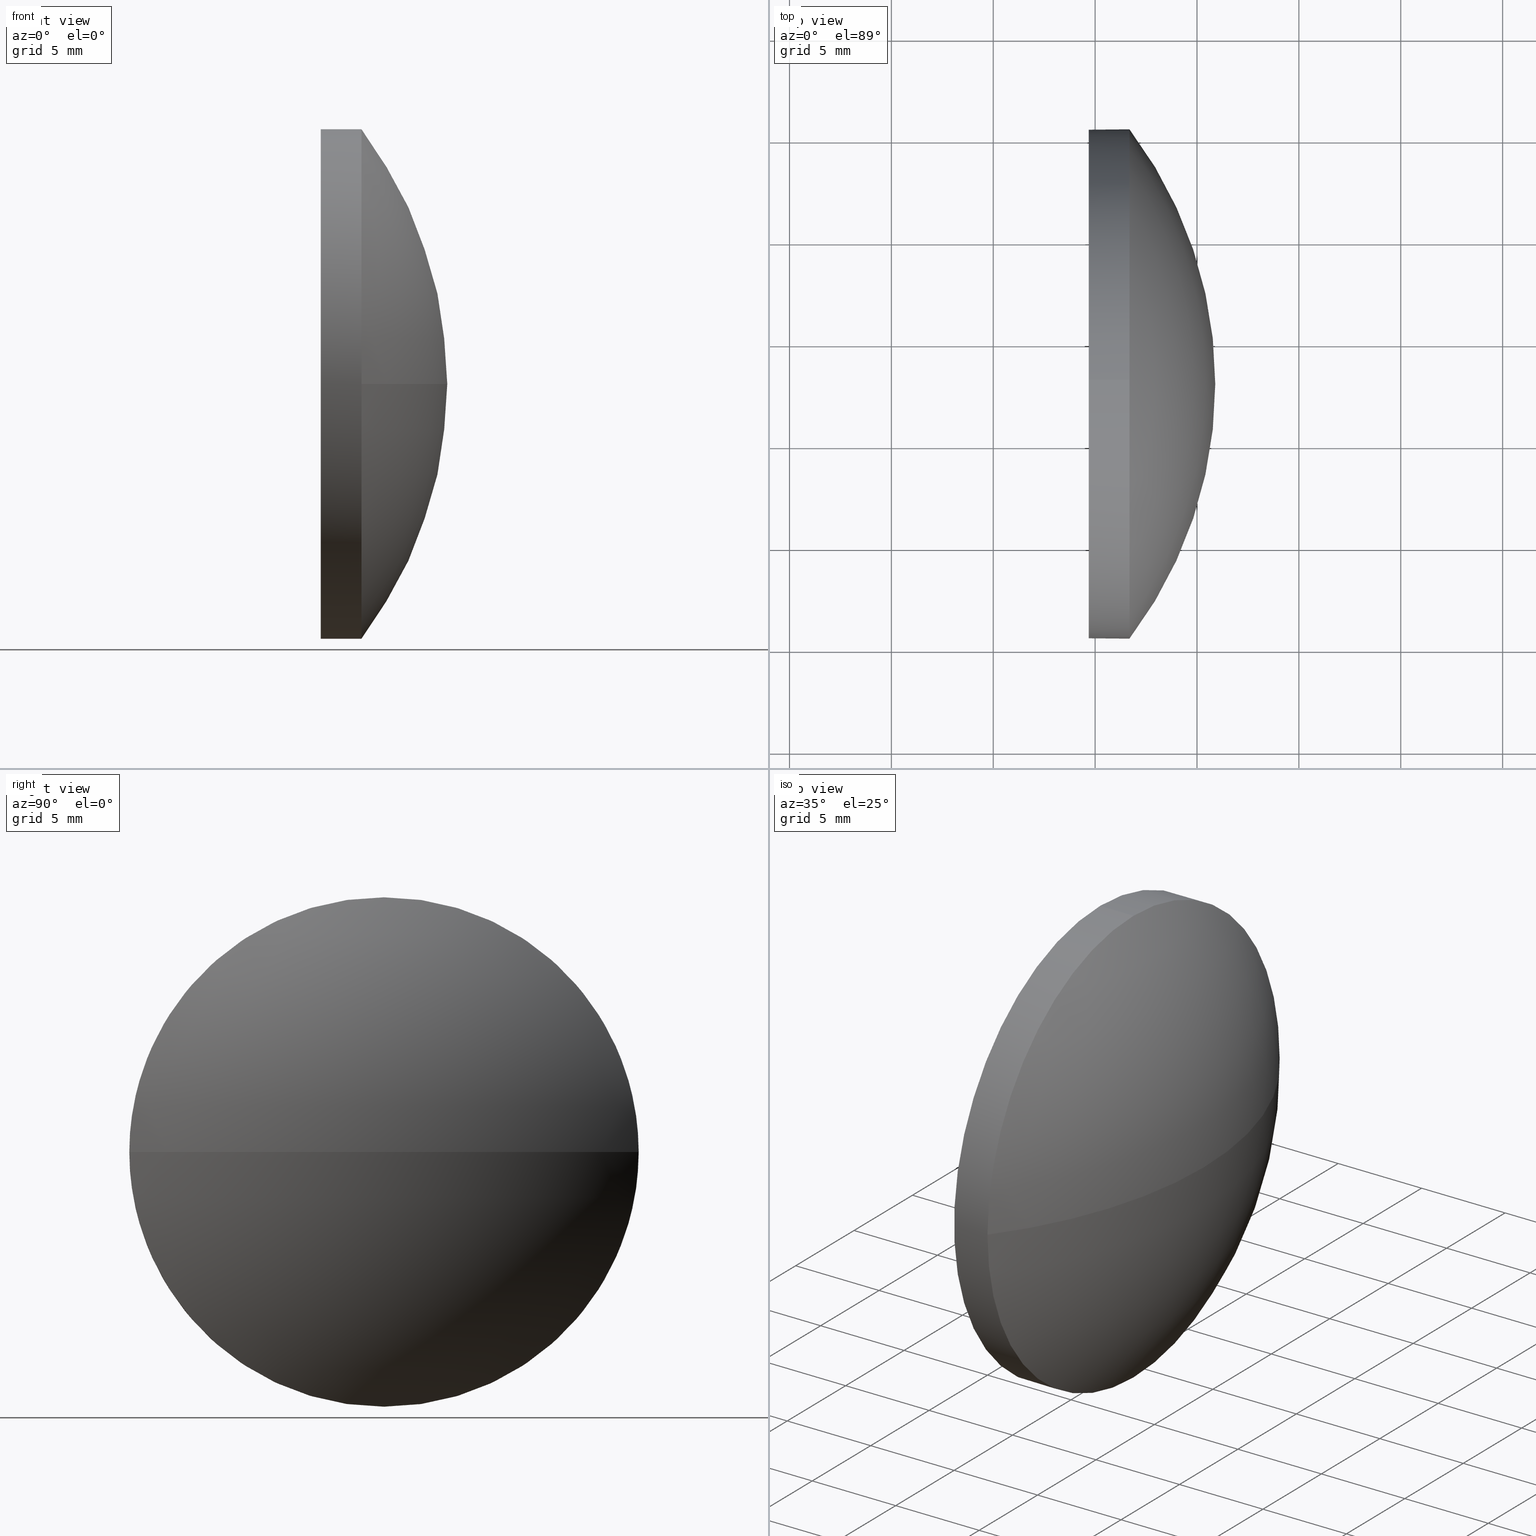
[diagram: canonical four-view strip — front | top / right | iso, engineering-drawing reading convention]
A machine part, canonical four-view strip (front | top / right | iso — engineering-drawing reading convention). The complete STEP part file that produces these views, byte-faithful:
ISO-10303-21;
HEADER;
FILE_DESCRIPTION (( 'STEP AP214' ),
    '1' );
FILE_NAME ('100211.STEP',
    '2019-05-23T07:29:26',
    ( '' ),
    ( '' ),
    'SwSTEP 2.0',
    'SolidWorks 2016',
    '' );
FILE_SCHEMA (( 'AUTOMOTIVE_DESIGN' ));
ENDSEC;

DATA;
#1 = CIRCLE ( 'NONE', #129, 12.49999999999999600 ) ;
#2 = ADVANCED_FACE ( 'NONE', ( #102 ), #83, .F. ) ;
#3 = CARTESIAN_POINT ( 'NONE',  ( 632.6574783470242700, 47.94655312557324600, 0.0000000000000000000 ) ) ;
#4 = DIRECTION ( 'NONE',  ( -1.000000000000000000, -0.0000000000000000000, -0.0000000000000000000 ) ) ;
#5 =( LENGTH_UNIT ( ) NAMED_UNIT ( * ) SI_UNIT ( .MILLI., .METRE. ) );
#6 = ORIENTED_EDGE ( 'NONE', *, *, #103, .F. ) ;
#7 = DIRECTION ( 'NONE',  ( 1.000000000000000000, 0.0000000000000000000, 0.0000000000000000000 ) ) ;
#8 = SURFACE_SIDE_STYLE ('',( #105 ) ) ;
#9 = CARTESIAN_POINT ( 'NONE',  ( 632.6574783470242700, 47.94655312557324600, 12.49999999999999600 ) ) ;
#10 = EDGE_CURVE ( 'NONE', #170, #79, #186, .T. ) ;
#11 = ORIENTED_EDGE ( 'NONE', *, *, #10, .F. ) ;
#12 = EDGE_LOOP ( 'NONE', ( #45, #93, #11, #21 ) ) ;
#13 = AXIS2_PLACEMENT_3D ( 'NONE', #153, #106, #120 ) ;
#14 = ORIENTED_EDGE ( 'NONE', *, *, #73, .F. ) ;
#15 = EDGE_CURVE ( 'NONE', #99, #28, #68, .T. ) ;
#16 = UNCERTAINTY_MEASURE_WITH_UNIT (LENGTH_MEASURE( 1.000000000000000100E-005 ), #59, 'distance_accuracy_value', 'NONE');
#17 = DIRECTION ( 'NONE',  ( 0.0000000000000000000, 0.0000000000000000000, 1.000000000000000000 ) ) ;
#18 = SURFACE_STYLE_FILL_AREA ( #42 ) ;
#19 = DIRECTION ( 'NONE',  ( 0.0000000000000000000, 0.0000000000000000000, 1.000000000000000000 ) ) ;
#20 = DIRECTION ( 'NONE',  ( -1.000000000000000000, -0.0000000000000000000, -0.0000000000000000000 ) ) ;
#21 = ORIENTED_EDGE ( 'NONE', *, *, #89, .F. ) ;
#22 = STYLED_ITEM ( 'NONE', ( #64 ), #154 ) ;
#23 =( NAMED_UNIT ( * ) PLANE_ANGLE_UNIT ( ) SI_UNIT ( $, .RADIAN. ) );
#24 = SHAPE_DEFINITION_REPRESENTATION ( #71, #177 ) ;
#25 = CYLINDRICAL_SURFACE ( 'NONE', #165, 12.49999999999999600 ) ;
#26 = DIRECTION ( 'NONE',  ( 0.0000000000000000000, -1.000000000000000000, 0.0000000000000000000 ) ) ;
#27 = DIRECTION ( 'NONE',  ( 0.0000000000000000000, 0.0000000000000000000, 1.000000000000000000 ) ) ;
#28 = VERTEX_POINT ( 'NONE', #185 ) ;
#29 = FACE_OUTER_BOUND ( 'NONE', #158, .T. ) ;
#30 = PRODUCT ( '100211', '100211', '', ( #162 ) ) ;
#31 = CIRCLE ( 'NONE', #13, 20.66200712589070300 ) ;
#32 =( GEOMETRIC_REPRESENTATION_CONTEXT ( 3 ) GLOBAL_UNCERTAINTY_ASSIGNED_CONTEXT ( ( #16 ) ) GLOBAL_UNIT_ASSIGNED_CONTEXT ( ( #59, #81, #54 ) ) REPRESENTATION_CONTEXT ( 'NONE', 'WORKASPACE' ) );
#33 = PRODUCT_DEFINITION_CONTEXT ( 'detailed design', #171, 'design' ) ;
#34 = SPHERICAL_SURFACE ( 'NONE', #161, 20.66200712589070300 ) ;
#35 = DIRECTION ( 'NONE',  ( -1.000000000000000000, -0.0000000000000000000, -0.0000000000000000000 ) ) ;
#36 = CARTESIAN_POINT ( 'NONE',  ( 636.6865859254612600, 47.94655312557324600, 12.49999999999999600 ) ) ;
#37 = DIRECTION ( 'NONE',  ( -1.000000000000000000, -0.0000000000000000000, -0.0000000000000000000 ) ) ;
#38 = ORIENTED_EDGE ( 'NONE', *, *, #103, .T. ) ;
#39 = EDGE_CURVE ( 'NONE', #99, #137, #181, .T. ) ;
#40 =( NAMED_UNIT ( * ) SI_UNIT ( $, .STERADIAN. ) SOLID_ANGLE_UNIT ( ) );
#41 = UNCERTAINTY_MEASURE_WITH_UNIT (LENGTH_MEASURE( 1.000000000000000100E-005 ), #5, 'distance_accuracy_value', 'NONE');
#42 = FILL_AREA_STYLE ('',( #56 ) ) ;
#43 = PRODUCT_DEFINITION_FORMATION_WITH_SPECIFIED_SOURCE ( '�κ�', '', #30, .NOT_KNOWN. ) ;
#44 = CARTESIAN_POINT ( 'NONE',  ( 634.6865859254612600, 47.94655312557324600, 0.0000000000000000000 ) ) ;
#45 = ORIENTED_EDGE ( 'NONE', *, *, #118, .F. ) ;
#46 = ORIENTED_EDGE ( 'NONE', *, *, #114, .T. ) ;
#47 = COLOUR_RGB ( '',1.000000000000000000, 1.000000000000000000, 1.000000000000000000 ) ;
#48 = DIRECTION ( 'NONE',  ( 0.0000000000000000000, 0.0000000000000000000, -1.000000000000000000 ) ) ;
#49 = DIRECTION ( 'NONE',  ( 0.0000000000000000000, 0.0000000000000000000, 1.000000000000000000 ) ) ;
#50 = CARTESIAN_POINT ( 'NONE',  ( 636.6865859254612600, 47.94655312557324600, 0.0000000000000000000 ) ) ;
#51 = ORIENTED_EDGE ( 'NONE', *, *, #89, .T. ) ;
#52 = DIRECTION ( 'NONE',  ( 0.0000000000000000000, 0.0000000000000000000, 1.000000000000000000 ) ) ;
#53 = COLOUR_RGB ( '',1.000000000000000000, 1.000000000000000000, 1.000000000000000000 ) ;
#54 =( NAMED_UNIT ( * ) SI_UNIT ( $, .STERADIAN. ) SOLID_ANGLE_UNIT ( ) );
#55 =( NAMED_UNIT ( * ) PLANE_ANGLE_UNIT ( ) SI_UNIT ( $, .RADIAN. ) );
#56 = FILL_AREA_STYLE_COLOUR ( '', #47 ) ;
#57 = FACE_OUTER_BOUND ( 'NONE', #174, .T. ) ;
#58 = SURFACE_STYLE_USAGE ( .BOTH. , #8 ) ;
#59 =( LENGTH_UNIT ( ) NAMED_UNIT ( * ) SI_UNIT ( .MILLI., .METRE. ) );
#60 = ORIENTED_EDGE ( 'NONE', *, *, #39, .T. ) ;
#61 =( GEOMETRIC_REPRESENTATION_CONTEXT ( 3 ) GLOBAL_UNCERTAINTY_ASSIGNED_CONTEXT ( ( #41 ) ) GLOBAL_UNIT_ASSIGNED_CONTEXT ( ( #5, #23, #40 ) ) REPRESENTATION_CONTEXT ( 'NONE', 'WORKASPACE' ) );
#62 = ORIENTED_EDGE ( 'NONE', *, *, #107, .F. ) ;
#63 = LINE ( 'NONE', #145, #160 ) ;
#64 = PRESENTATION_STYLE_ASSIGNMENT (( #127 ) ) ;
#65 = CIRCLE ( 'NONE', #128, 20.66200712589072500 ) ;
#66 = CARTESIAN_POINT ( 'NONE',  ( 632.6574783470242700, 47.94655312557324600, 0.0000000000000000000 ) ) ;
#67 = DIRECTION ( 'NONE',  ( -1.000000000000000000, -0.0000000000000000000, -0.0000000000000000000 ) ) ;
#68 = CIRCLE ( 'NONE', #115, 12.49999999999999600 ) ;
#69 = PRODUCT_DEFINITION ( 'δ֪', '', #43, #33 ) ;
#70 = CARTESIAN_POINT ( 'NONE',  ( 634.6865859254612600, 47.94655312557324600, 0.0000000000000000000 ) ) ;
#71 = PRODUCT_DEFINITION_SHAPE ( 'NONE', 'NONE',  #69 ) ;
#72 = CIRCLE ( 'NONE', #132, 12.49999999999999600 ) ;
#73 = EDGE_CURVE ( 'NONE', #133, #79, #65, .T. ) ;
#74 = CLOSED_SHELL ( 'NONE', ( #142, #175, #138, #135, #2 ) ) ;
#75 = AXIS2_PLACEMENT_3D ( 'NONE', #141, #157, #77 ) ;
#76 = DIRECTION ( 'NONE',  ( -1.000000000000000000, 0.0000000000000000000, 0.0000000000000000000 ) ) ;
#77 = DIRECTION ( 'NONE',  ( 0.0000000000000000000, 0.0000000000000000000, 1.000000000000000000 ) ) ;
#78 = DIRECTION ( 'NONE',  ( 0.0000000000000000000, 0.0000000000000000000, 1.000000000000000000 ) ) ;
#79 = VERTEX_POINT ( 'NONE', #179 ) ;
#80 = APPLICATION_PROTOCOL_DEFINITION ( 'draft international standard', 'automotive_design', 1998, #171 ) ;
#81 =( NAMED_UNIT ( * ) PLANE_ANGLE_UNIT ( ) SI_UNIT ( $, .RADIAN. ) );
#82 = PRESENTATION_LAYER_ASSIGNMENT (  '', '', ( #117 ) ) ;
#83 = PLANE ( 'NONE',  #86 ) ;
#84 = ORIENTED_EDGE ( 'NONE', *, *, #116, .T. ) ;
#85 = VECTOR ( 'NONE', #144, 1000.000000000000000 ) ;
#86 = AXIS2_PLACEMENT_3D ( 'NONE', #44, #98, #100 ) ;
#87 = PRODUCT_RELATED_PRODUCT_CATEGORY ( 'part', '', ( #30 ) ) ;
#88 = ORIENTED_EDGE ( 'NONE', *, *, #39, .F. ) ;
#89 = EDGE_CURVE ( 'NONE', #28, #170, #72, .T. ) ;
#90 = CIRCLE ( 'NONE', #156, 12.49999999999999600 ) ;
#91 = DIRECTION ( 'NONE',  ( 0.0000000000000000000, 0.0000000000000000000, 1.000000000000000000 ) ) ;
#92 = DIRECTION ( 'NONE',  ( 0.0000000000000000000, 0.0000000000000000000, 1.000000000000000000 ) ) ;
#93 = ORIENTED_EDGE ( 'NONE', *, *, #73, .T. ) ;
#94 = SPHERICAL_SURFACE ( 'NONE', #125, 20.66200712589070300 ) ;
#95 = CARTESIAN_POINT ( 'NONE',  ( 640.8965859254613000, 47.94655312557325300, 0.0000000000000000000 ) ) ;
#96 = EDGE_LOOP ( 'NONE', ( #51, #46, #6, #88, #126 ) ) ;
#97 = SURFACE_SIDE_STYLE ('',( #18 ) ) ;
#98 = DIRECTION ( 'NONE',  ( 1.000000000000000000, 0.0000000000000000000, 0.0000000000000000000 ) ) ;
#99 = VERTEX_POINT ( 'NONE', #36 ) ;
#100 = DIRECTION ( 'NONE',  ( 0.0000000000000000000, 0.0000000000000000000, -1.000000000000000000 ) ) ;
#101 = ORIENTED_EDGE ( 'NONE', *, *, #10, .T. ) ;
#102 = FACE_OUTER_BOUND ( 'NONE', #109, .T. ) ;
#103 = EDGE_CURVE ( 'NONE', #137, #152, #134, .T. ) ;
#104 = FACE_OUTER_BOUND ( 'NONE', #96, .T. ) ;
#105 = SURFACE_STYLE_FILL_AREA ( #183 ) ;
#106 = DIRECTION ( 'NONE',  ( 0.0000000000000000000, -1.224646799147353200E-016, 1.000000000000000000 ) ) ;
#107 = EDGE_CURVE ( 'NONE', #79, #99, #1, .T. ) ;
#108 = CARTESIAN_POINT ( 'NONE',  ( 620.2345787995706100, 47.94655312557325300, 0.0000000000000000000 ) ) ;
#109 = EDGE_LOOP ( 'NONE', ( #38, #84 ) ) ;
#110 = CARTESIAN_POINT ( 'NONE',  ( 636.6865859254612600, 47.94655312557324600, 0.0000000000000000000 ) ) ;
#111 = FILL_AREA_STYLE_COLOUR ( '', #53 ) ;
#112 = APPLICATION_CONTEXT ( 'automotive_design' ) ;
#113 =( NAMED_UNIT ( * ) SI_UNIT ( $, .STERADIAN. ) SOLID_ANGLE_UNIT ( ) );
#114 = EDGE_CURVE ( 'NONE', #170, #152, #63, .T. ) ;
#115 = AXIS2_PLACEMENT_3D ( 'NONE', #143, #67, #19 ) ;
#116 = EDGE_CURVE ( 'NONE', #152, #137, #90, .T. ) ;
#117 = STYLED_ITEM ( 'NONE', ( #176 ), #177 ) ;
#118 = EDGE_CURVE ( 'NONE', #133, #28, #31, .T. ) ;
#119 = UNCERTAINTY_MEASURE_WITH_UNIT (LENGTH_MEASURE( 1.000000000000000100E-005 ), #159, 'distance_accuracy_value', 'NONE');
#120 = DIRECTION ( 'NONE',  ( 0.0000000000000000000, -1.000000000000000000, -1.224646799147353200E-016 ) ) ;
#121 = DIRECTION ( 'NONE',  ( -1.000000000000000000, -0.0000000000000000000, -0.0000000000000000000 ) ) ;
#122 = DIRECTION ( 'NONE',  ( 0.0000000000000000000, 0.0000000000000000000, 1.000000000000000000 ) ) ;
#123 = CARTESIAN_POINT ( 'NONE',  ( 636.6865859254612600, 47.94655312557324600, -12.49999999999999600 ) ) ;
#124 = ORIENTED_EDGE ( 'NONE', *, *, #114, .F. ) ;
#125 = AXIS2_PLACEMENT_3D ( 'NONE', #130, #147, #26 ) ;
#126 = ORIENTED_EDGE ( 'NONE', *, *, #15, .T. ) ;
#127 = SURFACE_STYLE_USAGE ( .BOTH. , #97 ) ;
#128 = AXIS2_PLACEMENT_3D ( 'NONE', #182, #48, #76 ) ;
#129 = AXIS2_PLACEMENT_3D ( 'NONE', #50, #37, #17 ) ;
#130 = CARTESIAN_POINT ( 'NONE',  ( 620.2345787995706100, 47.94655312557325300, 0.0000000000000000000 ) ) ;
#131 = ORIENTED_EDGE ( 'NONE', *, *, #15, .F. ) ;
#132 = AXIS2_PLACEMENT_3D ( 'NONE', #110, #178, #49 ) ;
#133 = VERTEX_POINT ( 'NONE', #95 ) ;
#134 = CIRCLE ( 'NONE', #136, 12.49999999999999600 ) ;
#135 = ADVANCED_FACE ( 'NONE', ( #57 ), #167, .T. ) ;
#136 = AXIS2_PLACEMENT_3D ( 'NONE', #139, #20, #91 ) ;
#137 = VERTEX_POINT ( 'NONE', #169 ) ;
#138 = ADVANCED_FACE ( 'NONE', ( #150 ), #34, .T. ) ;
#139 = CARTESIAN_POINT ( 'NONE',  ( 634.6865859254612600, 47.94655312557324600, 0.0000000000000000000 ) ) ;
#140 = AXIS2_PLACEMENT_3D ( 'NONE', #3, #35, #52 ) ;
#141 = CARTESIAN_POINT ( 'NONE',  ( 636.6865859254612600, 47.94655312557324600, 0.0000000000000000000 ) ) ;
#142 = ADVANCED_FACE ( 'NONE', ( #104 ), #25, .T. ) ;
#143 = CARTESIAN_POINT ( 'NONE',  ( 636.6865859254612600, 47.94655312557324600, 0.0000000000000000000 ) ) ;
#144 = DIRECTION ( 'NONE',  ( -1.000000000000000000, -0.0000000000000000000, -0.0000000000000000000 ) ) ;
#145 = CARTESIAN_POINT ( 'NONE',  ( 632.6574783470242700, 47.94655312557324600, -12.49999999999999600 ) ) ;
#146 = CARTESIAN_POINT ( 'NONE',  ( 0.0000000000000000000, 0.0000000000000000000, 0.0000000000000000000 ) ) ;
#147 = DIRECTION ( 'NONE',  ( 0.0000000000000000000, 0.0000000000000000000, 1.000000000000000000 ) ) ;
#148 =( GEOMETRIC_REPRESENTATION_CONTEXT ( 3 ) GLOBAL_UNCERTAINTY_ASSIGNED_CONTEXT ( ( #119 ) ) GLOBAL_UNIT_ASSIGNED_CONTEXT ( ( #159, #55, #113 ) ) REPRESENTATION_CONTEXT ( 'NONE', 'WORKASPACE' ) );
#149 = APPLICATION_PROTOCOL_DEFINITION ( 'draft international standard', 'automotive_design', 1998, #112 ) ;
#150 = FACE_OUTER_BOUND ( 'NONE', #12, .T. ) ;
#151 = PRESENTATION_LAYER_ASSIGNMENT (  '', '', ( #22 ) ) ;
#152 = VERTEX_POINT ( 'NONE', #172 ) ;
#153 = CARTESIAN_POINT ( 'NONE',  ( 620.2345787995706100, 47.94655312557325300, 0.0000000000000000000 ) ) ;
#154 = MANIFOLD_SOLID_BREP ( '��ת1', #74 ) ;
#155 = DIRECTION ( 'NONE',  ( 0.0000000000000000000, -1.000000000000000000, 0.0000000000000000000 ) ) ;
#156 = AXIS2_PLACEMENT_3D ( 'NONE', #70, #121, #78 ) ;
#157 = DIRECTION ( 'NONE',  ( -1.000000000000000000, -0.0000000000000000000, -0.0000000000000000000 ) ) ;
#158 = EDGE_LOOP ( 'NONE', ( #14, #184, #131, #62 ) ) ;
#159 =( LENGTH_UNIT ( ) NAMED_UNIT ( * ) SI_UNIT ( .MILLI., .METRE. ) );
#160 = VECTOR ( 'NONE', #4, 1000.000000000000000 ) ;
#161 = AXIS2_PLACEMENT_3D ( 'NONE', #108, #122, #155 ) ;
#162 = PRODUCT_CONTEXT ( 'NONE', #112, 'mechanical' ) ;
#163 = MECHANICAL_DESIGN_GEOMETRIC_PRESENTATION_REPRESENTATION (  '', ( #117 ), #148 ) ;
#164 = AXIS2_PLACEMENT_3D ( 'NONE', #146, #27, #7 ) ;
#165 = AXIS2_PLACEMENT_3D ( 'NONE', #66, #180, #92 ) ;
#166 = ORIENTED_EDGE ( 'NONE', *, *, #116, .F. ) ;
#167 = CYLINDRICAL_SURFACE ( 'NONE', #140, 12.49999999999999600 ) ;
#168 = MECHANICAL_DESIGN_GEOMETRIC_PRESENTATION_REPRESENTATION (  '', ( #22 ), #61 ) ;
#169 = CARTESIAN_POINT ( 'NONE',  ( 634.6865859254612600, 47.94655312557324600, 12.49999999999999600 ) ) ;
#170 = VERTEX_POINT ( 'NONE', #123 ) ;
#171 = APPLICATION_CONTEXT ( 'automotive_design' ) ;
#172 = CARTESIAN_POINT ( 'NONE',  ( 634.6865859254612600, 47.94655312557324600, -12.49999999999999600 ) ) ;
#173 = ORIENTED_EDGE ( 'NONE', *, *, #107, .T. ) ;
#174 = EDGE_LOOP ( 'NONE', ( #124, #101, #173, #60, #166 ) ) ;
#175 = ADVANCED_FACE ( 'NONE', ( #29 ), #94, .T. ) ;
#176 = PRESENTATION_STYLE_ASSIGNMENT (( #58 ) ) ;
#177 = ADVANCED_BREP_SHAPE_REPRESENTATION ( '100211', ( #154, #164 ), #32 ) ;
#178 = DIRECTION ( 'NONE',  ( -1.000000000000000000, -0.0000000000000000000, -0.0000000000000000000 ) ) ;
#179 = CARTESIAN_POINT ( 'NONE',  ( 636.6865859254612600, 35.44655312557323900, 0.0000000000000000000 ) ) ;
#180 = DIRECTION ( 'NONE',  ( -1.000000000000000000, -0.0000000000000000000, -0.0000000000000000000 ) ) ;
#181 = LINE ( 'NONE', #9, #85 ) ;
#182 = CARTESIAN_POINT ( 'NONE',  ( 620.2345787995706100, 47.94655312557325300, 0.0000000000000000000 ) ) ;
#183 = FILL_AREA_STYLE ('',( #111 ) ) ;
#184 = ORIENTED_EDGE ( 'NONE', *, *, #118, .T. ) ;
#185 = CARTESIAN_POINT ( 'NONE',  ( 636.6865859254612600, 60.44655312557326000, 1.530808498934192300E-015 ) ) ;
#186 = CIRCLE ( 'NONE', #75, 12.49999999999999600 ) ;
ENDSEC;
END-ISO-10303-21;
